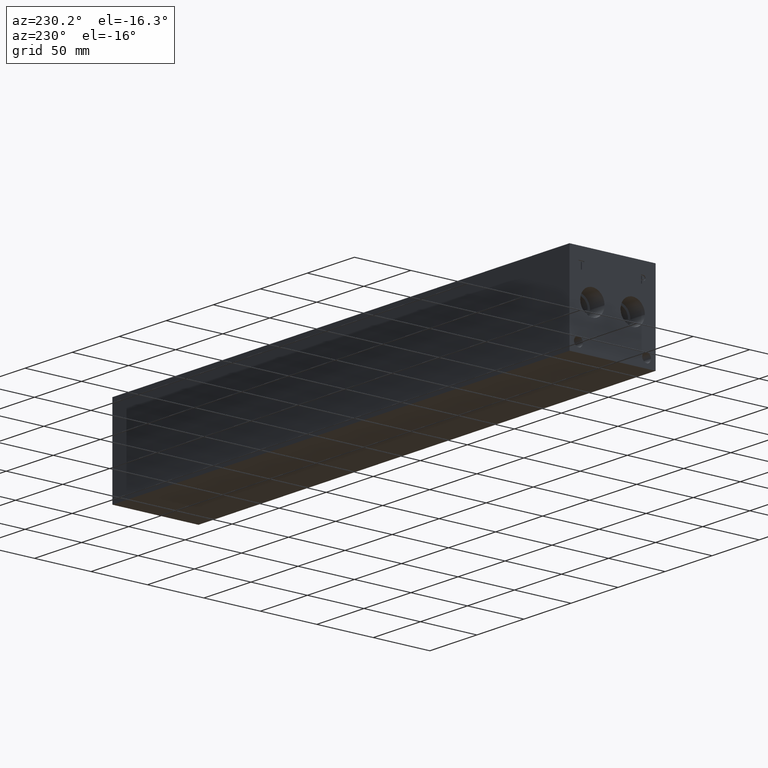
[diagram: clean part render]
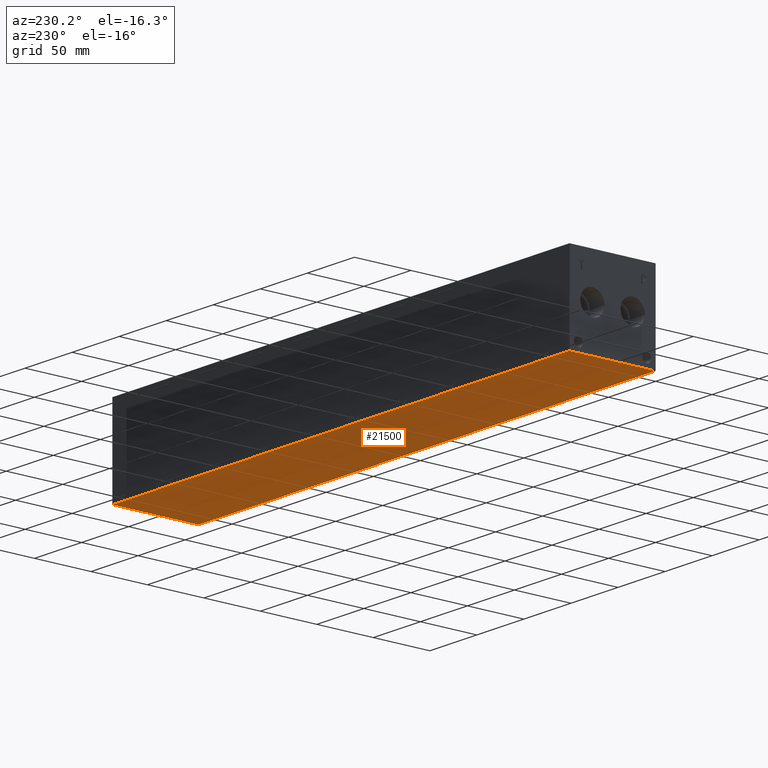
[diagram: same view with one face highlighted and labeled with its STEP entity id]
A machine part, auxiliary view. The second image highlights one B-rep face of the part: STEP entity #21500.
In plain terms, the highlighted planar face has unit normal (0, 0, 1).
Its self-contained STEP definition (entity closure, byte-faithful):
#1753=PLANE('',#23002);
#2869=FACE_OUTER_BOUND('',#4237,.T.);
#4237=EDGE_LOOP('',(#19398,#19399,#19400,#19401));
#4282=LINE('',#28126,#6096);
#5677=LINE('',#35129,#7491);
#5736=LINE('',#35401,#7550);
#6050=LINE('',#37375,#7864);
#6096=VECTOR('',#23073,10.);
#7491=VECTOR('',#25462,10.);
#7550=VECTOR('',#25575,10.);
#7864=VECTOR('',#27785,10.);
#8436=VERTEX_POINT('',#28124);
#8437=VERTEX_POINT('',#28125);
#9724=VERTEX_POINT('',#35128);
#9782=VERTEX_POINT('',#35400);
#10567=EDGE_CURVE('',#8436,#8437,#4282,.T.);
#12478=EDGE_CURVE('',#8437,#9724,#5677,.T.);
#12561=EDGE_CURVE('',#9782,#8436,#5736,.T.);
#13462=EDGE_CURVE('',#9724,#9782,#6050,.T.);
#19398=ORIENTED_EDGE('',*,*,#10567,.F.);
#19399=ORIENTED_EDGE('',*,*,#12561,.F.);
#19400=ORIENTED_EDGE('',*,*,#13462,.F.);
#19401=ORIENTED_EDGE('',*,*,#12478,.F.);
#21500=ADVANCED_FACE('',(#2869),#1753,.F.);
#23002=AXIS2_PLACEMENT_3D('',#37380,#27793,#27794);
#23073=DIRECTION('',(1.,0.,0.));
#25462=DIRECTION('',(0.,1.,0.));
#25575=DIRECTION('',(0.,-1.,0.));
#27785=DIRECTION('',(-1.,0.,0.));
#27793=DIRECTION('center_axis',(0.,0.,1.));
#27794=DIRECTION('ref_axis',(1.,0.,0.));
#28124=CARTESIAN_POINT('',(0.,0.,0.));
#28125=CARTESIAN_POINT('',(485.775,0.,0.));
#28126=CARTESIAN_POINT('',(0.,0.,0.));
#35128=CARTESIAN_POINT('',(485.775,76.2,0.));
#35129=CARTESIAN_POINT('',(485.775,0.,0.));
#35400=CARTESIAN_POINT('',(0.,76.2,0.));
#35401=CARTESIAN_POINT('',(0.,76.2,0.));
#37375=CARTESIAN_POINT('',(485.775,76.2,0.));
#37380=CARTESIAN_POINT('Origin',(242.8875,38.1,0.));